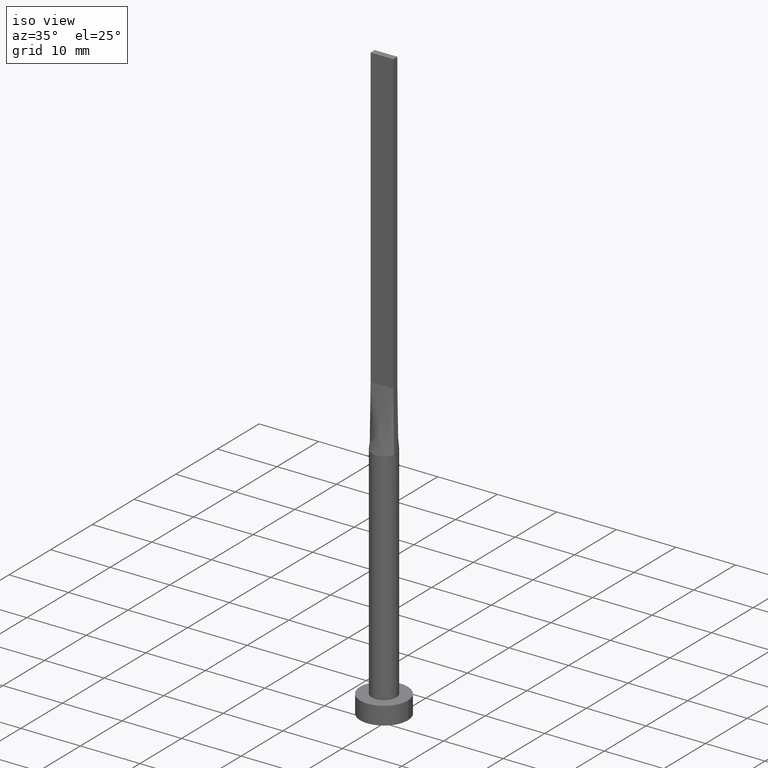
[diagram: clean part render]
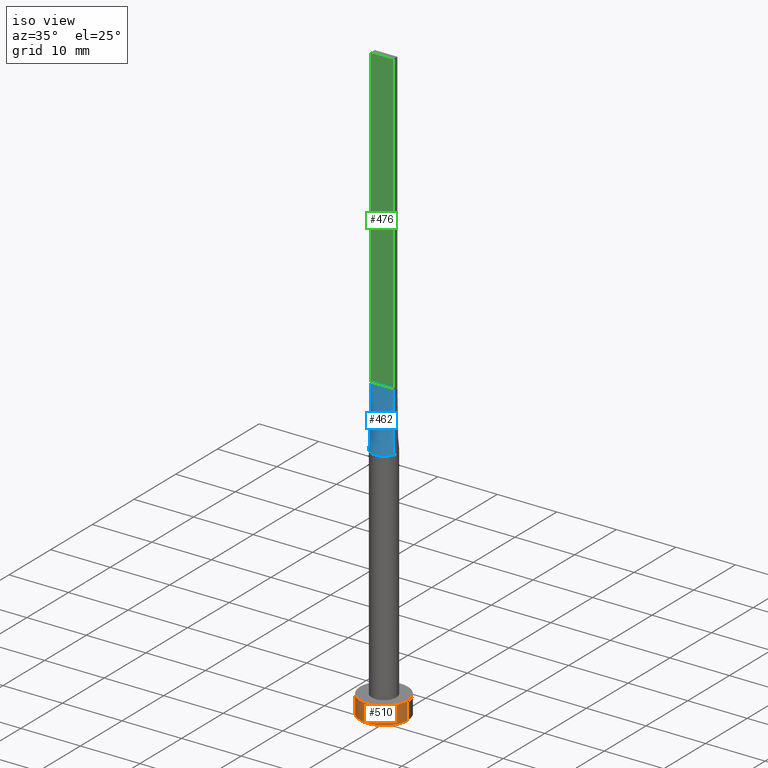
[diagram: same view with three faces highlighted in distinct colors, each labeled with its STEP entity id]
A machine part, iso view with three faces highlighted in distinct colors.
Their STEP definitions:

[orange] entity #510 — the highlighted cylindrical surface (edge-blend (fillet) strip) has radius 4 mm, axis along (-0, -0, -1).
#1 = LINE ( 'NONE', #304, #254 ) ;
#52 = ORIENTED_EDGE ( 'NONE', *, *, #366, .T. ) ;
#87 = EDGE_LOOP ( 'NONE', ( #362, #206, #123, #52 ) ) ;
#99 = AXIS2_PLACEMENT_3D ( 'NONE', #540, #306, #311 ) ;
#103 = CYLINDRICAL_SURFACE ( 'NONE', #308, 4.000000000000000000 ) ;
#120 = CARTESIAN_POINT ( 'NONE',  ( 0.000000000000000000, 0.000000000000000000, 3.000000000000000000 ) ) ;
#123 = ORIENTED_EDGE ( 'NONE', *, *, #224, .T. ) ;
#137 = VERTEX_POINT ( 'NONE', #248 ) ;
#155 = CARTESIAN_POINT ( 'NONE',  ( 4.000000000000000000, 4.898587196589412829E-16, 3.000000000000000000 ) ) ;
#165 = LINE ( 'NONE', #219, #425 ) ;
#173 = VERTEX_POINT ( 'NONE', #296 ) ;
#201 = AXIS2_PLACEMENT_3D ( 'NONE', #120, #402, #300 ) ;
#206 = ORIENTED_EDGE ( 'NONE', *, *, #535, .F. ) ;
#219 = CARTESIAN_POINT ( 'NONE',  ( -4.000000000000000000, 0.000000000000000000, 3.000000000000000000 ) ) ;
#224 = EDGE_CURVE ( 'NONE', #137, #297, #165, .T. ) ;
#231 = CARTESIAN_POINT ( 'NONE',  ( -4.000000000000000000, 0.000000000000000000, 0.000000000000000000 ) ) ;
#248 = CARTESIAN_POINT ( 'NONE',  ( -4.000000000000000000, 0.000000000000000000, 3.000000000000000000 ) ) ;
#254 = VECTOR ( 'NONE', #538, 1000.000000000000000 ) ;
#270 = EDGE_CURVE ( 'NONE', #329, #173, #1, .T. ) ;
#296 = CARTESIAN_POINT ( 'NONE',  ( 4.000000000000000000, 4.898587196589412829E-16, 0.000000000000000000 ) ) ;
#297 = VERTEX_POINT ( 'NONE', #231 ) ;
#300 = DIRECTION ( 'NONE',  ( 1.000000000000000000, 0.000000000000000000, 0.000000000000000000 ) ) ;
#304 = CARTESIAN_POINT ( 'NONE',  ( 4.000000000000000000, 4.898587196589412829E-16, 3.000000000000000000 ) ) ;
#306 = DIRECTION ( 'NONE',  ( 0.000000000000000000, 0.000000000000000000, 1.000000000000000000 ) ) ;
#308 = AXIS2_PLACEMENT_3D ( 'NONE', #508, #418, #324 ) ;
#311 = DIRECTION ( 'NONE',  ( 1.000000000000000000, 0.000000000000000000, 0.000000000000000000 ) ) ;
#324 = DIRECTION ( 'NONE',  ( -1.000000000000000000, 0.000000000000000000, 0.000000000000000000 ) ) ;
#329 = VERTEX_POINT ( 'NONE', #155 ) ;
#350 = CIRCLE ( 'NONE', #201, 4.000000000000000000 ) ;
#362 = ORIENTED_EDGE ( 'NONE', *, *, #270, .F. ) ;
#366 = EDGE_CURVE ( 'NONE', #297, #173, #520, .T. ) ;
#402 = DIRECTION ( 'NONE',  ( 0.000000000000000000, 0.000000000000000000, 1.000000000000000000 ) ) ;
#418 = DIRECTION ( 'NONE',  ( -0.000000000000000000, -0.000000000000000000, -1.000000000000000000 ) ) ;
#425 = VECTOR ( 'NONE', #579, 1000.000000000000000 ) ;
#508 = CARTESIAN_POINT ( 'NONE',  ( 0.000000000000000000, 0.000000000000000000, 3.000000000000000000 ) ) ;
#510 = ADVANCED_FACE ( 'NONE', ( #512 ), #103, .T. ) ;
#512 = FACE_OUTER_BOUND ( 'NONE', #87, .T. ) ;
#520 = CIRCLE ( 'NONE', #99, 4.000000000000000000 ) ;
#535 = EDGE_CURVE ( 'NONE', #137, #329, #350, .T. ) ;
#538 = DIRECTION ( 'NONE',  ( -0.000000000000000000, -0.000000000000000000, -1.000000000000000000 ) ) ;
#540 = CARTESIAN_POINT ( 'NONE',  ( 0.000000000000000000, 0.000000000000000000, 0.000000000000000000 ) ) ;
#579 = DIRECTION ( 'NONE',  ( -0.000000000000000000, -0.000000000000000000, -1.000000000000000000 ) ) ;

[blue] entity #462 — the highlighted face is a freeform B-spline surface patch.
#4 = ORIENTED_EDGE ( 'NONE', *, *, #578, .F. ) ;
#5 = CARTESIAN_POINT ( 'NONE',  ( -2.030856528251558046, -0.5344359284872515214, 40.00000000000000000 ) ) ;
#19 = ORIENTED_EDGE ( 'NONE', *, *, #414, .T. ) ;
#28 = CARTESIAN_POINT ( 'NONE',  ( 1.583333333333331039, -0.4999999999999997780, 50.00000000000000000 ) ) ;
#45 = FACE_OUTER_BOUND ( 'NONE', #109, .T. ) ;
#48 = CARTESIAN_POINT ( 'NONE',  ( 1.899999999999999023, -0.4999999999999997780, 50.00000000000000000 ) ) ;
#58 = VECTOR ( 'NONE', #430, 1000.000000000000000 ) ;
#63 = CARTESIAN_POINT ( 'NONE',  ( -1.583604922800831760, -1.399063468093435958, 40.00000000000000711 ) ) ;
#69 = CARTESIAN_POINT ( 'NONE',  ( -1.899999999999999911, -0.4999999999999995559, 50.00000000000000000 ) ) ;
#90 = LINE ( 'NONE', #131, #386 ) ;
#95 = EDGE_CURVE ( 'NONE', #275, #460, #106, .T. ) ;
#105 = CIRCLE ( 'NONE', #233, 2.100000000000000089 ) ;
#106 = LINE ( 'NONE', #354, #573 ) ;
#109 = EDGE_LOOP ( 'NONE', ( #19, #273, #4, #176 ) ) ;
#113 = CARTESIAN_POINT ( 'NONE',  ( 0.7916666666666622998, -0.4999999999999996669, 50.00000000000000000 ) ) ;
#119 = B_SPLINE_SURFACE_WITH_KNOTS ( 'NONE', 3, 1, ( 
 ( #5, #545 ),
 ( #313, #501 ),
 ( #252, #519 ),
 ( #374, #488 ),
 ( #63, #555 ),
 ( #283, #479 ),
 ( #437, #291 ),
 ( #246, #347 ),
 ( #428, #242 ),
 ( #194, #421 ),
 ( #435, #537 ),
 ( #571, #164 ),
 ( #356, #113 ),
 ( #491, #524 ),
 ( #581, #293 ),
 ( #360, #28 ),
 ( #343, #489 ),
 ( #234, #189 ) ),
 .UNSPECIFIED., .F., .F., .F.,
 ( 4, 2, 2, 2, 2, 2, 2, 2, 4 ),
 ( 2, 2 ),
 ( 0.000000000000000000, 0.1250000000000000555, 0.2500000000000001665, 0.3750000000000002776, 0.5000000000000003331, 0.6250000000000002220, 0.7500000000000002220, 0.8750000000000001110, 1.000000000000000000 ),
 ( 0.000000000000000000, 1.000000000000000000 ),
 .UNSPECIFIED. ) ;
#131 = CARTESIAN_POINT ( 'NONE',  ( 1.965428264125778091, -0.5172179642436263158, 45.00000000000000000 ) ) ;
#164 = CARTESIAN_POINT ( 'NONE',  ( 0.6333333333333286408, -0.4999999999999995559, 50.00000000000000000 ) ) ;
#171 = CARTESIAN_POINT ( 'NONE',  ( -2.031004407172260162, -0.5344754071304557153, 40.00000000000000000 ) ) ;
#176 = ORIENTED_EDGE ( 'NONE', *, *, #95, .T. ) ;
#181 = CARTESIAN_POINT ( 'NONE',  ( -1.899999999999999911, -0.4999999999999995559, 50.00000000000000000 ) ) ;
#189 = CARTESIAN_POINT ( 'NONE',  ( 1.899999999999999023, -0.4999999999999997780, 50.00000000000000000 ) ) ;
#194 = CARTESIAN_POINT ( 'NONE',  ( 0.2698109971861026857, -2.100000000000000977, 40.00000000000001421 ) ) ;
#214 = CARTESIAN_POINT ( 'NONE',  ( 2.031027953490633031, -0.5344816358097418396, 40.00000000000000000 ) ) ;
#215 = EDGE_CURVE ( 'NONE', #393, #312, #90, .T. ) ;
#233 = AXIS2_PLACEMENT_3D ( 'NONE', #566, #523, #497 ) ;
#234 = CARTESIAN_POINT ( 'NONE',  ( 2.030856528251557158, -0.5344359284872526317, 40.00000000000000000 ) ) ;
#242 = CARTESIAN_POINT ( 'NONE',  ( -0.1583333333333388215, -0.4999999999999995559, 50.00000000000000711 ) ) ;
#246 = CARTESIAN_POINT ( 'NONE',  ( -0.5389299406762309008, -2.046272663899432409, 40.00000000000000711 ) ) ;
#252 = CARTESIAN_POINT ( 'NONE',  ( -1.920830191244604412, -0.8725264301372614995, 40.00000000000000711 ) ) ;
#273 = ORIENTED_EDGE ( 'NONE', *, *, #215, .T. ) ;
#275 = VERTEX_POINT ( 'NONE', #181 ) ;
#283 = CARTESIAN_POINT ( 'NONE',  ( -1.235326090059015725, -1.714395692508636104, 39.99999999999999289 ) ) ;
#291 = CARTESIAN_POINT ( 'NONE',  ( -0.6333333333333375226, -0.4999999999999995559, 50.00000000000000000 ) ) ;
#293 = CARTESIAN_POINT ( 'NONE',  ( 1.266666666666663277, -0.4999999999999997780, 50.00000000000000000 ) ) ;
#298 = LINE ( 'NONE', #69, #58 ) ;
#312 = VERTEX_POINT ( 'NONE', #48 ) ;
#313 = CARTESIAN_POINT ( 'NONE',  ( -1.987786580065029840, -0.6981017315960599268, 39.99999999999999289 ) ) ;
#343 = CARTESIAN_POINT ( 'NONE',  ( 1.987786580065029396, -0.6981017315960611480, 40.00000000000000711 ) ) ;
#347 = CARTESIAN_POINT ( 'NONE',  ( -0.3166666666666716479, -0.4999999999999995559, 50.00000000000000000 ) ) ;
#354 = CARTESIAN_POINT ( 'NONE',  ( -1.965428264125778979, -0.5172179642436255387, 45.00000000000000000 ) ) ;
#356 = CARTESIAN_POINT ( 'NONE',  ( 1.235326090059013504, -1.714395692508636548, 39.99999999999999289 ) ) ;
#360 = CARTESIAN_POINT ( 'NONE',  ( 1.920830191244603302, -0.8725264301372632758, 40.00000000000001421 ) ) ;
#374 = CARTESIAN_POINT ( 'NONE',  ( -1.719043754744862484, -1.223020672007444798, 40.00000000000000000 ) ) ;
#386 = VECTOR ( 'NONE', #449, 1000.000000000000114 ) ;
#393 = VERTEX_POINT ( 'NONE', #214 ) ;
#414 = EDGE_CURVE ( 'NONE', #460, #393, #105, .T. ) ;
#421 = CARTESIAN_POINT ( 'NONE',  ( 0.1583333333333276638, -0.4999999999999995559, 50.00000000000000000 ) ) ;
#428 = CARTESIAN_POINT ( 'NONE',  ( -0.2698109971861053502, -2.100000000000000089, 40.00000000000001421 ) ) ;
#430 = DIRECTION ( 'NONE',  ( 1.000000000000000000, -5.706327223607918787E-17, 0.000000000000000000 ) ) ;
#435 = CARTESIAN_POINT ( 'NONE',  ( 0.5389299406762287914, -2.046272663899431965, 40.00000000000000000 ) ) ;
#436 = DIRECTION ( 'NONE',  ( -0.01308445504626047293, -0.003443277643752733208, -0.9999084662483913588 ) ) ;
#437 = CARTESIAN_POINT ( 'NONE',  ( -1.021961681204347050, -1.852908961101258578, 39.99999999999998579 ) ) ;
#449 = DIRECTION ( 'NONE',  ( -0.01308445504626047293, 0.003443277643752830786, 0.9999084662483913588 ) ) ;
#460 = VERTEX_POINT ( 'NONE', #171 ) ;
#462 = ADVANCED_FACE ( 'NONE', ( #45 ), #119, .T. ) ;
#479 = CARTESIAN_POINT ( 'NONE',  ( -0.7916666666666705154, -0.4999999999999995559, 50.00000000000000000 ) ) ;
#488 = CARTESIAN_POINT ( 'NONE',  ( -1.266666666666669494, -0.4999999999999995559, 50.00000000000000000 ) ) ;
#489 = CARTESIAN_POINT ( 'NONE',  ( 1.741666666666664920, -0.4999999999999997780, 50.00000000000000000 ) ) ;
#491 = CARTESIAN_POINT ( 'NONE',  ( 1.583604922800829984, -1.399063468093436846, 40.00000000000000000 ) ) ;
#497 = DIRECTION ( 'NONE',  ( 1.000000000000000000, 0.000000000000000000, 0.000000000000000000 ) ) ;
#501 = CARTESIAN_POINT ( 'NONE',  ( -1.741666666666667584, -0.4999999999999995559, 50.00000000000000000 ) ) ;
#519 = CARTESIAN_POINT ( 'NONE',  ( -1.583333333333335036, -0.4999999999999995559, 50.00000000000000000 ) ) ;
#523 = DIRECTION ( 'NONE',  ( 0.000000000000000000, 0.000000000000000000, 1.000000000000000000 ) ) ;
#524 = CARTESIAN_POINT ( 'NONE',  ( 1.108333333333329618, -0.4999999999999997780, 50.00000000000000000 ) ) ;
#537 = CARTESIAN_POINT ( 'NONE',  ( 0.3166666666666613228, -0.4999999999999995559, 50.00000000000000000 ) ) ;
#545 = CARTESIAN_POINT ( 'NONE',  ( -1.899999999999999911, -0.4999999999999995559, 50.00000000000000000 ) ) ;
#555 = CARTESIAN_POINT ( 'NONE',  ( -1.108333333333336501, -0.4999999999999995559, 50.00000000000000000 ) ) ;
#566 = CARTESIAN_POINT ( 'NONE',  ( 0.000000000000000000, 0.000000000000000000, 40.00000000000000000 ) ) ;
#571 = CARTESIAN_POINT ( 'NONE',  ( 1.021961681204344830, -1.852908961101259910, 39.99999999999999289 ) ) ;
#573 = VECTOR ( 'NONE', #436, 1000.000000000000114 ) ;
#578 = EDGE_CURVE ( 'NONE', #275, #312, #298, .T. ) ;
#581 = CARTESIAN_POINT ( 'NONE',  ( 1.719043754744861374, -1.223020672007445908, 40.00000000000001421 ) ) ;

[green] entity #476 — the highlighted planar face has unit normal (0, 1, -0).
#22 = DIRECTION ( 'NONE',  ( 5.706327223607920020E-17, 1.000000000000000000, -0.000000000000000000 ) ) ;
#48 = CARTESIAN_POINT ( 'NONE',  ( 1.899999999999999023, -0.4999999999999997780, 50.00000000000000000 ) ) ;
#58 = VECTOR ( 'NONE', #430, 1000.000000000000000 ) ;
#69 = CARTESIAN_POINT ( 'NONE',  ( -1.899999999999999911, -0.4999999999999995559, 50.00000000000000000 ) ) ;
#126 = LINE ( 'NONE', #250, #280 ) ;
#132 = ORIENTED_EDGE ( 'NONE', *, *, #544, .T. ) ;
#181 = CARTESIAN_POINT ( 'NONE',  ( -1.899999999999999911, -0.4999999999999995559, 50.00000000000000000 ) ) ;
#186 = CARTESIAN_POINT ( 'NONE',  ( -1.899999999999999911, -0.4999999999999995559, 100.0000000000000000 ) ) ;
#209 = CARTESIAN_POINT ( 'NONE',  ( -1.899999999999999911, -0.4999999999999995559, 100.0000000000000000 ) ) ;
#212 = VECTOR ( 'NONE', #299, 1000.000000000000000 ) ;
#250 = CARTESIAN_POINT ( 'NONE',  ( -1.899999999999999911, -0.4999999999999995559, 100.0000000000000000 ) ) ;
#255 = EDGE_CURVE ( 'NONE', #365, #312, #534, .T. ) ;
#272 = VECTOR ( 'NONE', #499, 1000.000000000000000 ) ;
#275 = VERTEX_POINT ( 'NONE', #181 ) ;
#280 = VECTOR ( 'NONE', #287, 1000.000000000000000 ) ;
#287 = DIRECTION ( 'NONE',  ( -0.000000000000000000, -0.000000000000000000, -1.000000000000000000 ) ) ;
#298 = LINE ( 'NONE', #69, #58 ) ;
#299 = DIRECTION ( 'NONE',  ( 1.000000000000000000, -5.706327223607920020E-17, 0.000000000000000000 ) ) ;
#312 = VERTEX_POINT ( 'NONE', #48 ) ;
#322 = ORIENTED_EDGE ( 'NONE', *, *, #578, .T. ) ;
#326 = DIRECTION ( 'NONE',  ( -1.000000000000000000, 5.706327223607920020E-17, 0.000000000000000000 ) ) ;
#341 = EDGE_CURVE ( 'NONE', #454, #365, #498, .T. ) ;
#359 = CARTESIAN_POINT ( 'NONE',  ( -1.899999999999999911, -0.4999999999999995559, 100.0000000000000000 ) ) ;
#365 = VERTEX_POINT ( 'NONE', #456 ) ;
#371 = PLANE ( 'NONE',  #469 ) ;
#413 = ORIENTED_EDGE ( 'NONE', *, *, #255, .F. ) ;
#430 = DIRECTION ( 'NONE',  ( 1.000000000000000000, -5.706327223607918787E-17, 0.000000000000000000 ) ) ;
#447 = ORIENTED_EDGE ( 'NONE', *, *, #341, .F. ) ;
#452 = CARTESIAN_POINT ( 'NONE',  ( 1.899999999999999023, -0.4999999999999997780, 100.0000000000000000 ) ) ;
#454 = VERTEX_POINT ( 'NONE', #359 ) ;
#456 = CARTESIAN_POINT ( 'NONE',  ( 1.899999999999999023, -0.4999999999999997780, 100.0000000000000000 ) ) ;
#469 = AXIS2_PLACEMENT_3D ( 'NONE', #186, #22, #326 ) ;
#476 = ADVANCED_FACE ( 'NONE', ( #562 ), #371, .F. ) ;
#498 = LINE ( 'NONE', #209, #212 ) ;
#499 = DIRECTION ( 'NONE',  ( -0.000000000000000000, -0.000000000000000000, -1.000000000000000000 ) ) ;
#522 = EDGE_LOOP ( 'NONE', ( #322, #413, #447, #132 ) ) ;
#534 = LINE ( 'NONE', #452, #272 ) ;
#544 = EDGE_CURVE ( 'NONE', #454, #275, #126, .T. ) ;
#562 = FACE_OUTER_BOUND ( 'NONE', #522, .T. ) ;
#578 = EDGE_CURVE ( 'NONE', #275, #312, #298, .T. ) ;